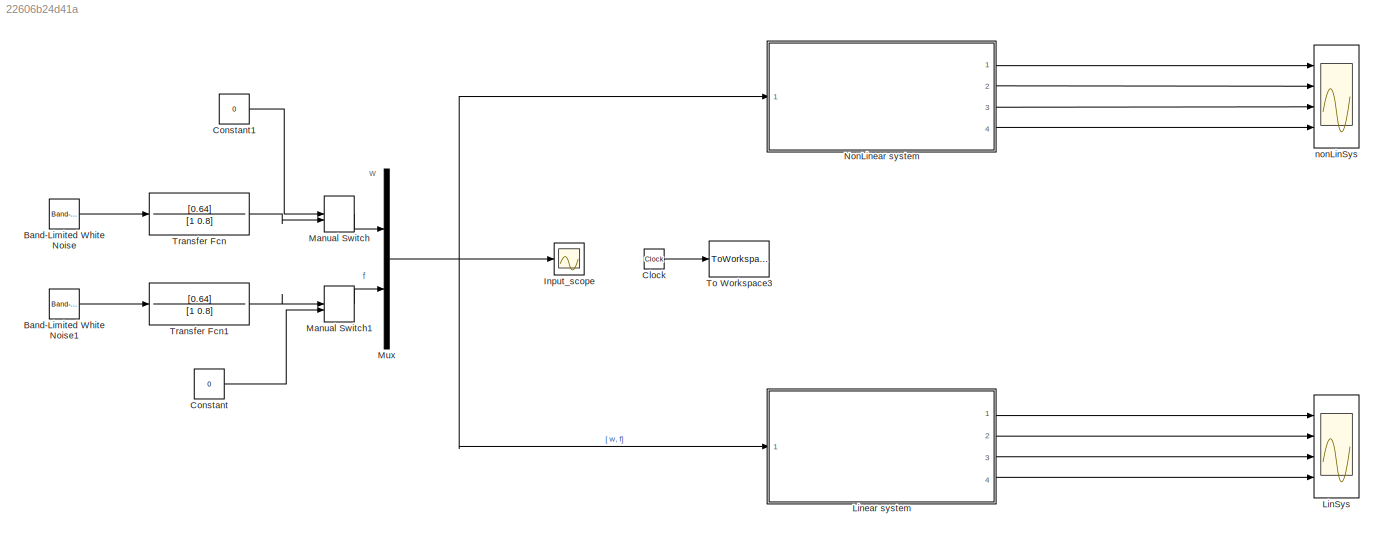
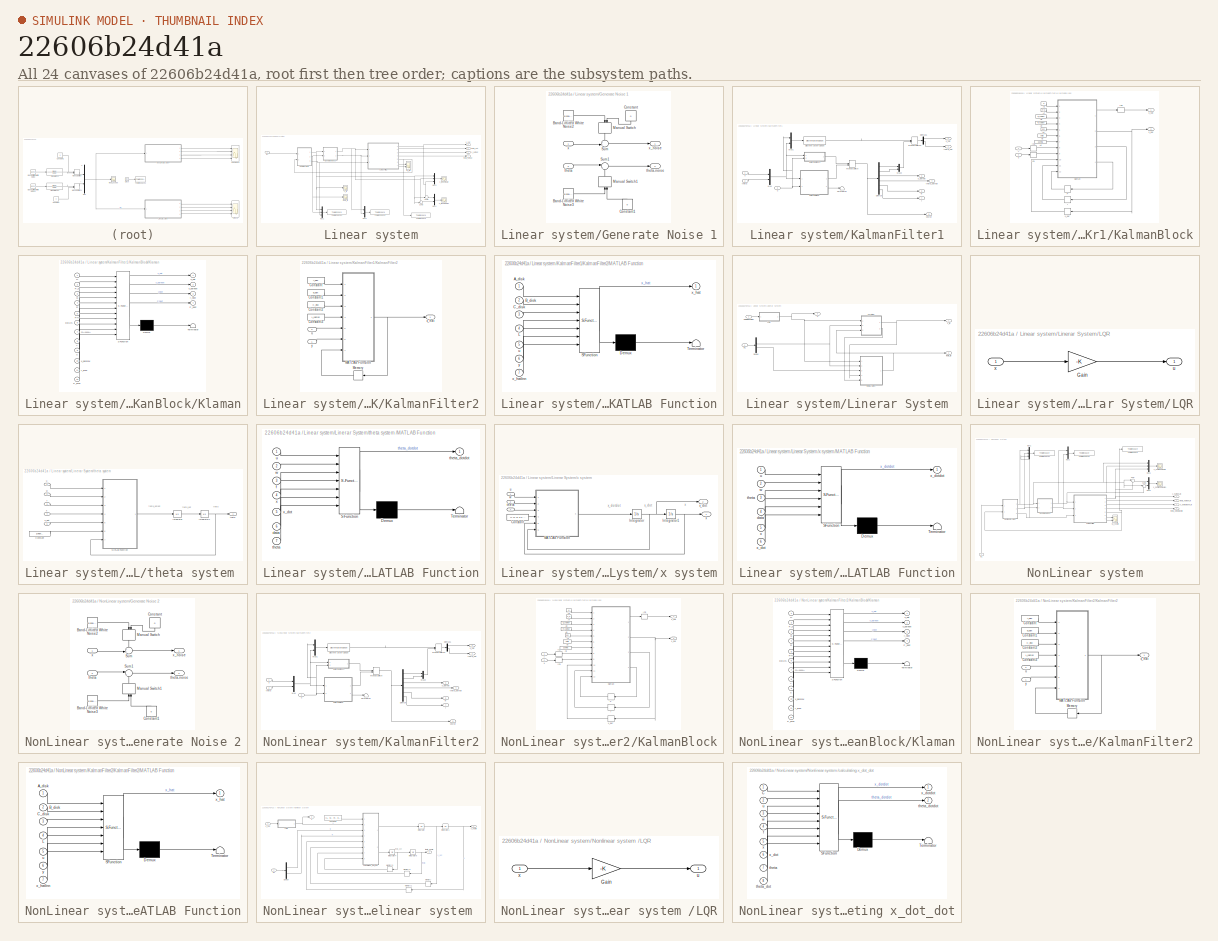
[diagram: thumbnail index - all 24 canvases of the model, root first then tree order]
MODEL slx_22606b24d41a
KIND model
CONFIG AbsTol = auto
CONFIG FixedStep = h
CONFIG MaxStep = auto
CONFIG MinStep = auto
CONFIG RelTol = 1e-3
CONFIG SampleTimeConstraint = Unconstrained
CONFIG Solver = ode3
CONFIG SolverMode = Auto
CONFIG SolverName = ode3
CONFIG StartTime = 0.0
CONFIG StopTime = T_max
BLOCK [Reference] Band-Limited White Noise  REF=simulink/Sources/Band-Limited
White Noise
  Cov = Q_kalman(1,1)
  Ports = [0, 1]
  SourceBlock = simulink/Sources/Band-Limited\nWhite Noise
  SourceType = Band-Limited White Noise.
  Ts = h
  VectorParams1D = on
  seed = [23343]
BLOCK [Reference] Band-Limited White Noise1  REF=simulink/Sources/Band-Limited
White Noise
  Cov = Q_kalman(2,2)
  Ports = [0, 1]
  SourceBlock = simulink/Sources/Band-Limited\nWhite Noise
  SourceType = Band-Limited White Noise.
  Ts = h
  VectorParams1D = on
  seed = [23344]
BLOCK [Clock] Clock
BLOCK [Constant] Constant
  Value = 0
BLOCK [Constant] Constant1
  Value = 0
BLOCK [Scope] Input_scope
  Floating = off
  LimitDataPoints = off
  NumInputPorts = 1
  Ports = [1]
  SaveName = ScopeData4
  ShowLegends = off
  YMax = 3
  YMin = -4
  ZoomMode = yonly
BLOCK [Scope] LinSys
  Floating = off
  LimitDataPoints = off
  NumInputPorts = 4
  Ports = [4]
  SaveName = ScopeData9
  ShowLegends = off
  YMax = 4~0.2~2~0.4
  YMin = -2~-0.2~-2~-0.4
BLOCK [SubSystem] Linear system
  Ports = [1, 4]
  RequestExecContextInheritance = off
BLOCK [SubSystem] Linear system/Generate Noise 1
  Ports = [2, 2]
  RequestExecContextInheritance = off
BLOCK [Reference] Linear system/Generate Noise 1/Band-Limited White Noise2  REF=simulink/Sources/Band-Limited
White Noise
  Cov = R_kalman(1,1)
  Ports = [0, 1]
  SourceBlock = simulink/Sources/Band-Limited\nWhite Noise
  SourceType = Band-Limited White Noise.
  Ts = h
  VectorParams1D = on
  seed = [23342]
BLOCK [Reference] Linear system/Generate Noise 1/Band-Limited White Noise3  REF=simulink/Sources/Band-Limited
White Noise
  Cov = R_kalman(2,2)
  Ports = [0, 1]
  SourceBlock = simulink/Sources/Band-Limited\nWhite Noise
  SourceType = Band-Limited White Noise.
  Ts = h
  VectorParams1D = on
  seed = [23341]
BLOCK [Constant] Linear system/Generate Noise 1/Constant
  Value = 0
BLOCK [Constant] Linear system/Generate Noise 1/Constant1
  Value = 0
BLOCK [ManualSwitch] Linear system/Generate Noise 1/Manual Switch
BLOCK [ManualSwitch] Linear system/Generate Noise 1/Manual Switch1
BLOCK [Sum] Linear system/Generate Noise 1/Sum
  IconShape = round
  InputSameDT = off
  Inputs = ++|
  OutDataTypeStr = Inherit: Inherit via internal rule
  Ports = [2, 1]
  SaturateOnIntegerOverflow = off
BLOCK [Sum] Linear system/Generate Noise 1/Sum1
  IconShape = round
  InputSameDT = off
  Inputs = |++
  OutDataTypeStr = Inherit: Inherit via internal rule
  Ports = [2, 1]
  SaturateOnIntegerOverflow = off
BLOCK [Inport] Linear system/Generate Noise 1/theta
  IconDisplay = Port number
  Port = 2
BLOCK [Outport] Linear system/Generate Noise 1/theta-noise
  IconDisplay = Port number
  Port = 2
BLOCK [Inport] Linear system/Generate Noise 1/x
  IconDisplay = Port number
BLOCK [Outport] Linear system/Generate Noise 1/x_noise
  IconDisplay = Port number
BLOCK [Inport] Linear system/In1
  IconDisplay = Port number
BLOCK [SubSystem] Linear system/KalmanFilter1
  Ports = [3, 7]
  RequestExecContextInheritance = off
BLOCK [Demux] Linear system/KalmanFilter1/Demux
  DisplayOption = bar
  Outputs = 6
  Ports = [1, 6]
BLOCK [Demux] Linear system/KalmanFilter1/Demux1
  DisplayOption = bar
  Outputs = 2
  Ports = [1, 2]
BLOCK [DiscreteStateSpace] Linear system/KalmanFilter1/Discrete State-Space
  A = A_ss
  B = B_ss
  C = C_ss
  D = D_ss
BLOCK [SubSystem] Linear system/KalmanFilter1/KalmanBlock
  Ports = [2, 2]
  RequestExecContextInheritance = off
BLOCK [Constant] Linear system/KalmanFilter1/KalmanBlock/A2
  Value = H
BLOCK [Constant] Linear system/KalmanFilter1/KalmanBlock/A4
  Value = phi
BLOCK [Constant] Linear system/KalmanFilter1/KalmanBlock/A5
  Value = delta
BLOCK [Constant] Linear system/KalmanFilter1/KalmanBlock/A6
  Value = gamma
BLOCK [Constant] Linear system/KalmanFilter1/KalmanBlock/A7
  Value = P_0
BLOCK [Constant] Linear system/KalmanFilter1/KalmanBlock/A8
  Value = Q_kalman
BLOCK [Constant] Linear system/KalmanFilter1/KalmanBlock/A9
  Value = R_kalman
BLOCK [InitialCondition] Linear system/KalmanFilter1/KalmanBlock/IC3
  Value = y_0
BLOCK [InitialCondition] Linear system/KalmanFilter1/KalmanBlock/IC4
  Value = 0
BLOCK [InitialCondition] Linear system/KalmanFilter1/KalmanBlock/IC5
  Value = X_0
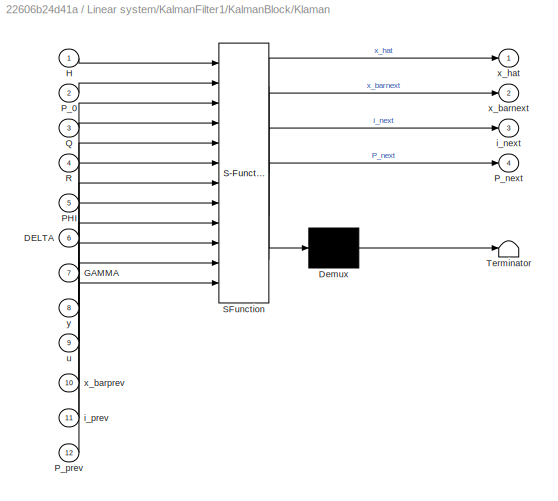
BLOCK [SubSystem] Linear system/KalmanFilter1/KalmanBlock/Klaman
  ErrorFcn = Stateflow.Translate.translate
  PermitHierarchicalResolution = ExplicitOnly
  Ports = [12, 4]
  RequestExecContextInheritance = off
  SFBlockType = MATLAB Function
  TreatAsAtomicUnit = on
BLOCK [Demux] Linear system/KalmanFilter1/KalmanBlock/Klaman/ Demux 
  Outputs = 1
  Ports = [1, 1]
BLOCK [S-Function] Linear system/KalmanFilter1/KalmanBlock/Klaman/ SFunction 
  EnableBusSupport = on
  FunctionName = sf_sfun
  PortCounts = [12 5]
  Ports = [12, 5]
  Tag = Stateflow S-Function Model_kalmanTest4 5
BLOCK [Terminator] Linear system/KalmanFilter1/KalmanBlock/Klaman/ Terminator 
BLOCK [Inport] Linear system/KalmanFilter1/KalmanBlock/Klaman/DELTA
  IconDisplay = Port number
  Port = 6
BLOCK [Inport] Linear system/KalmanFilter1/KalmanBlock/Klaman/GAMMA
  IconDisplay = Port number
  Port = 7
BLOCK [Inport] Linear system/KalmanFilter1/KalmanBlock/Klaman/H
  IconDisplay = Port number
BLOCK [Inport] Linear system/KalmanFilter1/KalmanBlock/Klaman/PHI
  IconDisplay = Port number
  Port = 5
BLOCK [Inport] Linear system/KalmanFilter1/KalmanBlock/Klaman/P_0
  IconDisplay = Port number
  Port = 2
BLOCK [Outport] Linear system/KalmanFilter1/KalmanBlock/Klaman/P_next
  IconDisplay = Port number
  Port = 4
BLOCK [Inport] Linear system/KalmanFilter1/KalmanBlock/Klaman/P_prev
  IconDisplay = Port number
  Port = 12
BLOCK [Inport] Linear system/KalmanFilter1/KalmanBlock/Klaman/Q
  IconDisplay = Port number
  Port = 3
BLOCK [Inport] Linear system/KalmanFilter1/KalmanBlock/Klaman/R
  IconDisplay = Port number
  Port = 4
BLOCK [Outport] Linear system/KalmanFilter1/KalmanBlock/Klaman/i_next
  IconDisplay = Port number
  Port = 3
BLOCK [Inport] Linear system/KalmanFilter1/KalmanBlock/Klaman/i_prev
  IconDisplay = Port number
  Port = 11
BLOCK [Inport] Linear system/KalmanFilter1/KalmanBlock/Klaman/u
  IconDisplay = Port number
  Port = 9
BLOCK [Outport] Linear system/KalmanFilter1/KalmanBlock/Klaman/x_barnext
  IconDisplay = Port number
  Port = 2
BLOCK [Inport] Linear system/KalmanFilter1/KalmanBlock/Klaman/x_barprev
  IconDisplay = Port number
  Port = 10
BLOCK [Outport] Linear system/KalmanFilter1/KalmanBlock/Klaman/x_hat
  IconDisplay = Port number
BLOCK [Inport] Linear system/KalmanFilter1/KalmanBlock/Klaman/y
  IconDisplay = Port number
  Port = 8
BLOCK [Memory] Linear system/KalmanFilter1/KalmanBlock/P
  X0 = P_0
BLOCK [Memory] Linear system/KalmanFilter1/KalmanBlock/i 
BLOCK [Inport] Linear system/KalmanFilter1/KalmanBlock/u 
  IconDisplay = Port number
  Port = 2
BLOCK [Outport] Linear system/KalmanFilter1/KalmanBlock/x_bar
  IconDisplay = Port number
  Port = 2
BLOCK [Memory] Linear system/KalmanFilter1/KalmanBlock/x_bar'
  X0 = X_0
BLOCK [Outport] Linear system/KalmanFilter1/KalmanBlock/x_hat
  IconDisplay = Port number
BLOCK [Inport] Linear system/KalmanFilter1/KalmanBlock/y 
  IconDisplay = Port number
BLOCK [SubSystem] Linear system/KalmanFilter1/KalmanFilter2
  Ports = [2, 1]
  RequestExecContextInheritance = off
BLOCK [Constant] Linear system/KalmanFilter1/KalmanFilter2/Constant
  Value = A_disk
BLOCK [Constant] Linear system/KalmanFilter1/KalmanFilter2/Constant1
  Value = B_disk
BLOCK [Constant] Linear system/KalmanFilter1/KalmanFilter2/Constant2
  Value = C_disk
BLOCK [Constant] Linear system/KalmanFilter1/KalmanFilter2/Constant3
  Value = L_kalman
BLOCK [SubSystem] Linear system/KalmanFilter1/KalmanFilter2/MATLAB Function
  ErrorFcn = Stateflow.Translate.translate
  PermitHierarchicalResolution = ExplicitOnly
  Ports = [7, 1]
  RequestExecContextInheritance = off
  SFBlockType = MATLAB Function
  TreatAsAtomicUnit = on
BLOCK [Demux] Linear system/KalmanFilter1/KalmanFilter2/MATLAB Function/ Demux 
  Outputs = 1
  Ports = [1, 1]
BLOCK [S-Function] Linear system/KalmanFilter1/KalmanFilter2/MATLAB Function/ SFunction 
  EnableBusSupport = on
  FunctionName = sf_sfun
  PortCounts = [7 2]
  Ports = [7, 2]
  Tag = Stateflow S-Function Model_kalmanTest4 7
BLOCK [Terminator] Linear system/KalmanFilter1/KalmanFilter2/MATLAB Function/ Terminator 
BLOCK [Inport] Linear system/KalmanFilter1/KalmanFilter2/MATLAB Function/A_disk
  IconDisplay = Port number
BLOCK [Inport] Linear system/KalmanFilter1/KalmanFilter2/MATLAB Function/B_disk
  IconDisplay = Port number
  Port = 2
BLOCK [Inport] Linear system/KalmanFilter1/KalmanFilter2/MATLAB Function/C_disk
  IconDisplay = Port number
  Port = 3
BLOCK [Inport] Linear system/KalmanFilter1/KalmanFilter2/MATLAB Function/L
  IconDisplay = Port number
  Port = 4
BLOCK [Inport] Linear system/KalmanFilter1/KalmanFilter2/MATLAB Function/u
  IconDisplay = Port number
  Port = 5
BLOCK [Outport] Linear system/KalmanFilter1/KalmanFilter2/MATLAB Function/x_hat
  IconDisplay = Port number
BLOCK [Inport] Linear system/KalmanFilter1/KalmanFilter2/MATLAB Function/x_hatInn
  IconDisplay = Port number
  Port = 7
BLOCK [Inport] Linear system/KalmanFilter1/KalmanFilter2/MATLAB Function/y
  IconDisplay = Port number
  Port = 6
BLOCK [Memory] Linear system/KalmanFilter1/KalmanFilter2/Memory
  X0 = X_0
BLOCK [Inport] Linear system/KalmanFilter1/KalmanFilter2/u
  IconDisplay = Port number
  Port = 2
BLOCK [Outport] Linear system/KalmanFilter1/KalmanFilter2/x_hat
  IconDisplay = Port number
BLOCK [Inport] Linear system/KalmanFilter1/KalmanFilter2/y
  IconDisplay = Port number
BLOCK [ManualSwitch] Linear system/KalmanFilter1/Manual Switch
  CurrentSetting = 0
BLOCK [ManualSwitch] Linear system/KalmanFilter1/Manual Switch1
  CurrentSetting = 0
BLOCK [Mux] Linear system/KalmanFilter1/Mux
  DisplayOption = bar
  Inputs = 2
  Ports = [2, 1]
BLOCK [Mux] Linear system/KalmanFilter1/Mux1
  DisplayOption = bar
  Inputs = 2
  Ports = [2, 1]
BLOCK [Mux] Linear system/KalmanFilter1/Mux2
  DisplayOption = bar
  Inputs = 2
  Ports = [2, 1]
BLOCK [Terminator] Linear system/KalmanFilter1/Terminator
BLOCK [Outport] Linear system/KalmanFilter1/f
  IconDisplay = Port number
  Port = 7
BLOCK [Inport] Linear system/KalmanFilter1/theta
  IconDisplay = Port number
  Port = 2
BLOCK [Outport] Linear system/KalmanFilter1/theta_dothat
  IconDisplay = Port number
  Port = 4
BLOCK [Outport] Linear system/KalmanFilter1/theta_hat
  IconDisplay = Port number
  Port = 2
BLOCK [Inport] Linear system/KalmanFilter1/u 
  IconDisplay = Port number
  Port = 3
BLOCK [Outport] Linear system/KalmanFilter1/vector
  IconDisplay = Port number
  Port = 5
BLOCK [Outport] Linear system/KalmanFilter1/w
  IconDisplay = Port number
  Port = 6
BLOCK [Inport] Linear system/KalmanFilter1/x
  IconDisplay = Port number
BLOCK [Outport] Linear system/KalmanFilter1/x_dothat
  IconDisplay = Port number
  Port = 3
BLOCK [Outport] Linear system/KalmanFilter1/x_hat
  IconDisplay = Port number
BLOCK [SubSystem] Linear system/Linerar System
  Ports = [2, 3]
  RequestExecContextInheritance = off
BLOCK [Demux] Linear system/Linerar System/Demux
  DisplayOption = bar
  Outputs = 2
  Ports = [1, 2]
BLOCK [Inport] Linear system/Linerar System/Estimated states
  IconDisplay = Port number
  Port = 2
BLOCK [Inport] Linear system/Linerar System/In1
  IconDisplay = Port number
BLOCK [SubSystem] Linear system/Linerar System/LQR
  Ports = [1, 1]
  RequestExecContextInheritance = off
BLOCK [Gain] Linear system/Linerar System/LQR/Gain
  Gain = -K
  Multiplication = Matrix(K*u)
  OutDataTypeStr = Inherit: Inherit via internal rule
  ParamDataTypeStr = Inherit: Inherit via internal rule
  SaturateOnIntegerOverflow = off
BLOCK [Outport] Linear system/Linerar System/LQR/u
  IconDisplay = Port number
BLOCK [Inport] Linear system/Linerar System/LQR/x
  IconDisplay = Port number
BLOCK [SubSystem] Linear system/Linerar System/theta system 
  Ports = [5, 1]
  RequestExecContextInheritance = off
BLOCK [Constant] Linear system/Linerar System/theta system /Constant
  SampleTime = 0.01
  Value = [L M m b k g]
  VectorParams1D = off
BLOCK [Integrator] Linear system/Linerar System/theta system /Integrator
  InitialCondition = theta_dot0
  Ports = [1, 1]
BLOCK [Integrator] Linear system/Linerar System/theta system /Integrator1
  InitialCondition = theta_0
  Ports = [1, 1]
BLOCK [SubSystem] Linear system/Linerar System/theta system /MATLAB Function
  ErrorFcn = Stateflow.Translate.translate
  PermitHierarchicalResolution = ExplicitOnly
  Ports = [7, 1]
  RequestExecContextInheritance = off
  SFBlockType = MATLAB Function
  TreatAsAtomicUnit = on
BLOCK [Demux] Linear system/Linerar System/theta system /MATLAB Function/ Demux 
  Outputs = 1
  Ports = [1, 1]
BLOCK [S-Function] Linear system/Linerar System/theta system /MATLAB Function/ SFunction 
  EnableBusSupport = on
  FunctionName = sf_sfun
  PortCounts = [7 2]
  Ports = [7, 2]
  Tag = Stateflow S-Function Model_kalmanTest4 3
BLOCK [Terminator] Linear system/Linerar System/theta system /MATLAB Function/ Terminator 
BLOCK [Inport] Linear system/Linerar System/theta system /MATLAB Function/data
  IconDisplay = Port number
  Port = 6
BLOCK [Inport] Linear system/Linerar System/theta system /MATLAB Function/f
  IconDisplay = Port number
  Port = 3
BLOCK [Inport] Linear system/Linerar System/theta system /MATLAB Function/theta
  IconDisplay = Port number
  Port = 7
BLOCK [Outport] Linear system/Linerar System/theta system /MATLAB Function/theta_dotdot
  IconDisplay = Port number
BLOCK [Inport] Linear system/Linerar System/theta system /MATLAB Function/u
  IconDisplay = Port number
BLOCK [Inport] Linear system/Linerar System/theta system /MATLAB Function/w
  IconDisplay = Port number
  Port = 2
BLOCK [Inport] Linear system/Linerar System/theta system /MATLAB Function/x
  IconDisplay = Port number
  Port = 4
BLOCK [Inport] Linear system/Linerar System/theta system /MATLAB Function/x_dot
  IconDisplay = Port number
  Port = 5
BLOCK [Inport] Linear system/Linerar System/theta system /f
  IconDisplay = Port number
  Port = 3
BLOCK [Outport] Linear system/Linerar System/theta system /theta
  IconDisplay = Port number
BLOCK [Inport] Linear system/Linerar System/theta system /u 
  IconDisplay = Port number
BLOCK [Inport] Linear system/Linerar System/theta system /w
  IconDisplay = Port number
  Port = 2
BLOCK [Inport] Linear system/Linerar System/theta system /x
  IconDisplay = Port number
  Port = 4
BLOCK [Inport] Linear system/Linerar System/theta system /x_dot
  IconDisplay = Port number
  Port = 5
BLOCK [Outport] Linear system/Linerar System/theta_lin
  IconDisplay = Port number
  Port = 2
BLOCK [Outport] Linear system/Linerar System/u
  IconDisplay = Port number
  Port = 3
BLOCK [SubSystem] Linear system/Linerar System/x system
  Ports = [3, 2]
  RequestExecContextInheritance = off
BLOCK [Constant] Linear system/Linerar System/x system/Constant
  SampleTime = 0.01
  Value = [L M m b k g]
  VectorParams1D = off
BLOCK [Integrator] Linear system/Linerar System/x system/Integrator
  InitialCondition = x_dot0
  Ports = [1, 1]
BLOCK [Integrator] Linear system/Linerar System/x system/Integrator1
  InitialCondition = x_0
  Ports = [1, 1]
BLOCK [SubSystem] Linear system/Linerar System/x system/MATLAB Function
  ErrorFcn = Stateflow.Translate.translate
  PermitHierarchicalResolution = ExplicitOnly
  Ports = [6, 1]
  RequestExecContextInheritance = off
  SFBlockType = MATLAB Function
  TreatAsAtomicUnit = on
BLOCK [Demux] Linear system/Linerar System/x system/MATLAB Function/ Demux 
  Outputs = 1
  Ports = [1, 1]
BLOCK [S-Function] Linear system/Linerar System/x system/MATLAB Function/ SFunction 
  EnableBusSupport = on
  FunctionName = sf_sfun
  PortCounts = [6 2]
  Ports = [6, 2]
  Tag = Stateflow S-Function Model_kalmanTest4 1
BLOCK [Terminator] Linear system/Linerar System/x system/MATLAB Function/ Terminator 
BLOCK [Inport] Linear system/Linerar System/x system/MATLAB Function/data
  IconDisplay = Port number
  Port = 4
BLOCK [Inport] Linear system/Linerar System/x system/MATLAB Function/theta
  IconDisplay = Port number
  Port = 3
BLOCK [Inport] Linear system/Linerar System/x system/MATLAB Function/u
  IconDisplay = Port number
BLOCK [Inport] Linear system/Linerar System/x system/MATLAB Function/w
  IconDisplay = Port number
  Port = 2
BLOCK [Inport] Linear system/Linerar System/x system/MATLAB Function/x
  IconDisplay = Port number
  Port = 5
BLOCK [Inport] Linear system/Linerar System/x system/MATLAB Function/x_dot
  IconDisplay = Port number
  Port = 6
BLOCK [Outport] Linear system/Linerar System/x system/MATLAB Function/x_dotdot
  IconDisplay = Port number
BLOCK [Inport] Linear system/Linerar System/x system/theta
  IconDisplay = Port number
  Port = 3
BLOCK [Inport] Linear system/Linerar System/x system/u 
  IconDisplay = Port number
BLOCK [Inport] Linear system/Linerar System/x system/w
  IconDisplay = Port number
  Port = 2
BLOCK [Outport] Linear system/Linerar System/x system/x
  IconDisplay = Port number
BLOCK [Outport] Linear system/Linerar System/x system/x_dot
  IconDisplay = Port number
  Port = 2
BLOCK [Outport] Linear system/Linerar System/x_lin
  IconDisplay = Port number
BLOCK [Mux] Linear system/Mux1
  DisplayOption = bar
  Inputs = 3
  Ports = [3, 1]
BLOCK [Mux] Linear system/Mux2
  DisplayOption = bar
  Inputs = 2
  Ports = [2, 1]
BLOCK [Mux] Linear system/Mux3
  DisplayOption = bar
  Inputs = 3
  Ports = [3, 1]
BLOCK [Mux] Linear system/Mux4
  DisplayOption = bar
  Inputs = 2
  Ports = [2, 1]
BLOCK [Sum] Linear system/Sum2
  IconShape = round
  InputSameDT = off
  Inputs = -+|
  OutDataTypeStr = Inherit: Inherit via internal rule
  Ports = [2, 1]
  SaturateOnIntegerOverflow = off
BLOCK [Sum] Linear system/Sum3
  IconShape = round
  InputSameDT = off
  Inputs = -+|
  OutDataTypeStr = Inherit: Inherit via internal rule
  Ports = [2, 1]
  SaturateOnIntegerOverflow = off
BLOCK [ToWorkspace] Linear system/To Workspace
  FixptAsFi = on
  MaxDataPoints = inf
  Ports = [1]
  SampleTime = -1
  Save2DSignal = 3-D array (concatenate along third dimension)
  VariableName = KalmanFilterOutLin
BLOCK [ToWorkspace] Linear system/To Workspace1
  FixptAsFi = on
  MaxDataPoints = inf
  Ports = [1]
  SampleTime = -1
  Save2DSignal = 3-D array (concatenate along third dimension)
  VariableName = SimOutLin
BLOCK [ToWorkspace] Linear system/To Workspace2
  FixptAsFi = on
  MaxDataPoints = inf
  Ports = [1]
  SampleTime = -1
  Save2DSignal = 3-D array (concatenate along third dimension)
  VariableName = NoiseSigLin
BLOCK [Outport] Linear system/theta_dothat
  IconDisplay = Port number
  Port = 4
BLOCK [Outport] Linear system/theta_hat
  IconDisplay = Port number
  Port = 2
BLOCK [Scope] Linear system/theta_lin
  DataFormat = StructureWithTime
  Floating = off
  LimitDataPoints = off
  NumInputPorts = 1
  Ports = [1]
  SaveName = ScopeData2
  ShowLegends = off
  YMax = 25353039785693015000000000000000000000000000000000000000000000000000000000000000000000000000000000000000000000000000000000000000000000000000000000000000000000000000000000000000000000000000000000000000000000000000000000000000000000000000000000000000000000000000000000000000000000000000000000000000000000000.00000
  YMin = -228177358071237180000000000000000000000000000000000000000000000000000000000000000000000000000000000000000000000000000000000000000000000000000000000000000000000000000000000000000000000000000000000000000000000000000000000000000000000000000000000000000000000000000000000000000000000000000000000000000000000000.00000
BLOCK [Scope] Linear system/w_f_lin
  DataFormat = StructureWithTime
  Floating = off
  LegendLocations = 0.87418     0.90781    0.097674    0.028273\n0.87418     0.44321    0.097674    0.028273
  LimitDataPoints = off
  NumInputPorts = 2
  Ports = [2]
  SaveName = ScopeData10
  ShowLegends = on
  YMax = 4~0.03
  YMin = -4~-0.03
  ZoomMode = yonly
BLOCK [Outport] Linear system/x_dothat
  IconDisplay = Port number
  Port = 3
BLOCK [Outport] Linear system/x_hat
  IconDisplay = Port number
BLOCK [Scope] Linear system/x_lin
  DataFormat = StructureWithTime
  Floating = off
  LimitDataPoints = off
  NumInputPorts = 1
  Ports = [1]
  SaveName = ScopeData1
  ShowLegends = off
  YMax = 0.5
  YMin = -0.5
  ZoomMode = yonly
BLOCK [Scope] Linear system/x_linCompare
  DataFormat = StructureWithTime
  Floating = off
  LegendLocations = 0.86111     0.86503     0.11083    0.071054
  LimitDataPoints = off
  NumInputPorts = 1
  Ports = [1]
  SaveName = ScopeData6
  ShowLegends = on
  TimeRange = 100
  YMax = 2.5
  YMin = -2
  ZoomMode = yonly
BLOCK [Scope] Linear system/x_linCompare 2
  DataFormat = StructureWithTime
  Floating = off
  LegendLocations = 0.90964     0.88642    0.062214    0.049664
  LimitDataPoints = off
  NumInputPorts = 1
  Ports = [1]
  SaveName = ScopeData7
  ShowLegends = on
  YMax = 0.15
  YMin = -0.15
  ZoomMode = xonly
BLOCK [ManualSwitch] Manual Switch
  CurrentSetting = 0
BLOCK [ManualSwitch] Manual Switch1
BLOCK [Mux] Mux
  DisplayOption = bar
  Inputs = 2
  Ports = [2, 1]
BLOCK [SubSystem] NonLinear system
  Ports = [1, 4]
  RequestExecContextInheritance = off
BLOCK [SubSystem] NonLinear system/Generate Noise 2
  Ports = [2, 2]
  RequestExecContextInheritance = off
BLOCK [Reference] NonLinear system/Generate Noise 2/Band-Limited White Noise2  REF=simulink/Sources/Band-Limited
White Noise
  Cov = R_kalman(1,1)
  Ports = [0, 1]
  SourceBlock = simulink/Sources/Band-Limited\nWhite Noise
  SourceType = Band-Limited White Noise.
  Ts = h
  VectorParams1D = on
  seed = [23342]
BLOCK [Reference] NonLinear system/Generate Noise 2/Band-Limited White Noise3  REF=simulink/Sources/Band-Limited
White Noise
  Cov = R_kalman(2,2)
  Ports = [0, 1]
  SourceBlock = simulink/Sources/Band-Limited\nWhite Noise
  SourceType = Band-Limited White Noise.
  Ts = h
  VectorParams1D = on
  seed = [23341]
BLOCK [Constant] NonLinear system/Generate Noise 2/Constant
  Value = 0
BLOCK [Constant] NonLinear system/Generate Noise 2/Constant1
  Value = 0
BLOCK [ManualSwitch] NonLinear system/Generate Noise 2/Manual Switch
BLOCK [ManualSwitch] NonLinear system/Generate Noise 2/Manual Switch1
BLOCK [Sum] NonLinear system/Generate Noise 2/Sum
  IconShape = round
  InputSameDT = off
  Inputs = ++|
  OutDataTypeStr = Inherit: Inherit via internal rule
  Ports = [2, 1]
  SaturateOnIntegerOverflow = off
BLOCK [Sum] NonLinear system/Generate Noise 2/Sum1
  IconShape = round
  InputSameDT = off
  Inputs = |++
  OutDataTypeStr = Inherit: Inherit via internal rule
  Ports = [2, 1]
  SaturateOnIntegerOverflow = off
BLOCK [Inport] NonLinear system/Generate Noise 2/theta
  IconDisplay = Port number
  Port = 2
BLOCK [Outport] NonLinear system/Generate Noise 2/theta-noise
  IconDisplay = Port number
  Port = 2
BLOCK [Inport] NonLinear system/Generate Noise 2/x
  IconDisplay = Port number
BLOCK [Outport] NonLinear system/Generate Noise 2/x_noise
  IconDisplay = Port number
BLOCK [Inport] NonLinear system/In1
  IconDisplay = Port number
BLOCK [SubSystem] NonLinear system/KalmanFilter2
  Ports = [3, 7]
  RequestExecContextInheritance = off
BLOCK [Demux] NonLinear system/KalmanFilter2/Demux
  DisplayOption = bar
  Outputs = 6
  Ports = [1, 6]
BLOCK [Demux] NonLinear system/KalmanFilter2/Demux1
  DisplayOption = bar
  Outputs = 2
  Ports = [1, 2]
BLOCK [DiscreteStateSpace] NonLinear system/KalmanFilter2/Discrete State-Space
  A = A_ss
  B = B_ss
  C = C_ss
  D = D_ss
BLOCK [SubSystem] NonLinear system/KalmanFilter2/KalmanBlock
  Ports = [2, 2]
  RequestExecContextInheritance = off
BLOCK [Constant] NonLinear system/KalmanFilter2/KalmanBlock/A2
  Value = H
BLOCK [Constant] NonLinear system/KalmanFilter2/KalmanBlock/A4
  Value = phi
BLOCK [Constant] NonLinear system/KalmanFilter2/KalmanBlock/A5
  Value = delta
BLOCK [Constant] NonLinear system/KalmanFilter2/KalmanBlock/A6
  Value = gamma
BLOCK [Constant] NonLinear system/KalmanFilter2/KalmanBlock/A7
  Value = P_0
BLOCK [Constant] NonLinear system/KalmanFilter2/KalmanBlock/A8
  Value = Q_kalman
BLOCK [Constant] NonLinear system/KalmanFilter2/KalmanBlock/A9
  Value = R_kalman
BLOCK [InitialCondition] NonLinear system/KalmanFilter2/KalmanBlock/IC3
  Value = y_0
BLOCK [InitialCondition] NonLinear system/KalmanFilter2/KalmanBlock/IC4
  Value = 0
BLOCK [InitialCondition] NonLinear system/KalmanFilter2/KalmanBlock/IC5
  Value = X_0
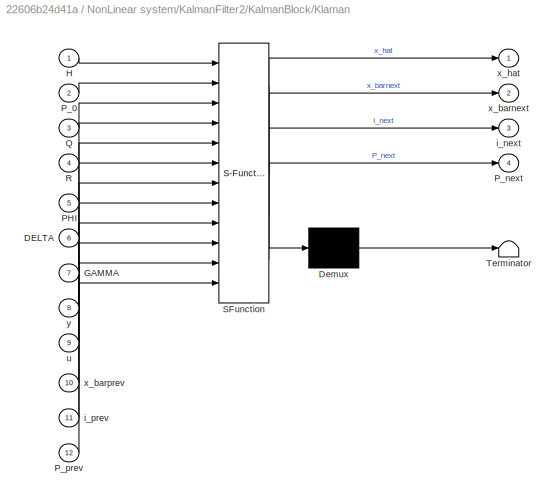
BLOCK [SubSystem] NonLinear system/KalmanFilter2/KalmanBlock/Klaman
  ErrorFcn = Stateflow.Translate.translate
  PermitHierarchicalResolution = ExplicitOnly
  Ports = [12, 4]
  RequestExecContextInheritance = off
  SFBlockType = MATLAB Function
  TreatAsAtomicUnit = on
BLOCK [Demux] NonLinear system/KalmanFilter2/KalmanBlock/Klaman/ Demux 
  Outputs = 1
  Ports = [1, 1]
BLOCK [S-Function] NonLinear system/KalmanFilter2/KalmanBlock/Klaman/ SFunction 
  EnableBusSupport = on
  FunctionName = sf_sfun
  PortCounts = [12 5]
  Ports = [12, 5]
  Tag = Stateflow S-Function Model_kalmanTest4 2
BLOCK [Terminator] NonLinear system/KalmanFilter2/KalmanBlock/Klaman/ Terminator 
BLOCK [Inport] NonLinear system/KalmanFilter2/KalmanBlock/Klaman/DELTA
  IconDisplay = Port number
  Port = 6
BLOCK [Inport] NonLinear system/KalmanFilter2/KalmanBlock/Klaman/GAMMA
  IconDisplay = Port number
  Port = 7
BLOCK [Inport] NonLinear system/KalmanFilter2/KalmanBlock/Klaman/H
  IconDisplay = Port number
BLOCK [Inport] NonLinear system/KalmanFilter2/KalmanBlock/Klaman/PHI
  IconDisplay = Port number
  Port = 5
BLOCK [Inport] NonLinear system/KalmanFilter2/KalmanBlock/Klaman/P_0
  IconDisplay = Port number
  Port = 2
BLOCK [Outport] NonLinear system/KalmanFilter2/KalmanBlock/Klaman/P_next
  IconDisplay = Port number
  Port = 4
BLOCK [Inport] NonLinear system/KalmanFilter2/KalmanBlock/Klaman/P_prev
  IconDisplay = Port number
  Port = 12
BLOCK [Inport] NonLinear system/KalmanFilter2/KalmanBlock/Klaman/Q
  IconDisplay = Port number
  Port = 3
BLOCK [Inport] NonLinear system/KalmanFilter2/KalmanBlock/Klaman/R
  IconDisplay = Port number
  Port = 4
BLOCK [Outport] NonLinear system/KalmanFilter2/KalmanBlock/Klaman/i_next
  IconDisplay = Port number
  Port = 3
BLOCK [Inport] NonLinear system/KalmanFilter2/KalmanBlock/Klaman/i_prev
  IconDisplay = Port number
  Port = 11
BLOCK [Inport] NonLinear system/KalmanFilter2/KalmanBlock/Klaman/u
  IconDisplay = Port number
  Port = 9
BLOCK [Outport] NonLinear system/KalmanFilter2/KalmanBlock/Klaman/x_barnext
  IconDisplay = Port number
  Port = 2
BLOCK [Inport] NonLinear system/KalmanFilter2/KalmanBlock/Klaman/x_barprev
  IconDisplay = Port number
  Port = 10
BLOCK [Outport] NonLinear system/KalmanFilter2/KalmanBlock/Klaman/x_hat
  IconDisplay = Port number
BLOCK [Inport] NonLinear system/KalmanFilter2/KalmanBlock/Klaman/y
  IconDisplay = Port number
  Port = 8
BLOCK [Memory] NonLinear system/KalmanFilter2/KalmanBlock/P
  X0 = P_0
BLOCK [Memory] NonLinear system/KalmanFilter2/KalmanBlock/i 
BLOCK [Inport] NonLinear system/KalmanFilter2/KalmanBlock/u 
  IconDisplay = Port number
  Port = 2
BLOCK [Outport] NonLinear system/KalmanFilter2/KalmanBlock/x_bar
  IconDisplay = Port number
  Port = 2
BLOCK [Memory] NonLinear system/KalmanFilter2/KalmanBlock/x_bar'
  X0 = X_0
BLOCK [Outport] NonLinear system/KalmanFilter2/KalmanBlock/x_hat
  IconDisplay = Port number
BLOCK [Inport] NonLinear system/KalmanFilter2/KalmanBlock/y 
  IconDisplay = Port number
BLOCK [SubSystem] NonLinear system/KalmanFilter2/KalmanFilter2
  Ports = [2, 1]
  RequestExecContextInheritance = off
BLOCK [Constant] NonLinear system/KalmanFilter2/KalmanFilter2/Constant
  Value = A_disk
BLOCK [Constant] NonLinear system/KalmanFilter2/KalmanFilter2/Constant1
  Value = B_disk
BLOCK [Constant] NonLinear system/KalmanFilter2/KalmanFilter2/Constant2
  Value = C_disk
BLOCK [Constant] NonLinear system/KalmanFilter2/KalmanFilter2/Constant3
  Value = L_kalman
BLOCK [SubSystem] NonLinear system/KalmanFilter2/KalmanFilter2/MATLAB Function
  ErrorFcn = Stateflow.Translate.translate
  PermitHierarchicalResolution = ExplicitOnly
  Ports = [7, 1]
  RequestExecContextInheritance = off
  SFBlockType = MATLAB Function
  TreatAsAtomicUnit = on
BLOCK [Demux] NonLinear system/KalmanFilter2/KalmanFilter2/MATLAB Function/ Demux 
  Outputs = 1
  Ports = [1, 1]
BLOCK [S-Function] NonLinear system/KalmanFilter2/KalmanFilter2/MATLAB Function/ SFunction 
  EnableBusSupport = on
  FunctionName = sf_sfun
  PortCounts = [7 2]
  Ports = [7, 2]
  Tag = Stateflow S-Function Model_kalmanTest4 6
BLOCK [Terminator] NonLinear system/KalmanFilter2/KalmanFilter2/MATLAB Function/ Terminator 
BLOCK [Inport] NonLinear system/KalmanFilter2/KalmanFilter2/MATLAB Function/A_disk
  IconDisplay = Port number
BLOCK [Inport] NonLinear system/KalmanFilter2/KalmanFilter2/MATLAB Function/B_disk
  IconDisplay = Port number
  Port = 2
BLOCK [Inport] NonLinear system/KalmanFilter2/KalmanFilter2/MATLAB Function/C_disk
  IconDisplay = Port number
  Port = 3
BLOCK [Inport] NonLinear system/KalmanFilter2/KalmanFilter2/MATLAB Function/L
  IconDisplay = Port number
  Port = 4
BLOCK [Inport] NonLinear system/KalmanFilter2/KalmanFilter2/MATLAB Function/u
  IconDisplay = Port number
  Port = 5
BLOCK [Outport] NonLinear system/KalmanFilter2/KalmanFilter2/MATLAB Function/x_hat
  IconDisplay = Port number
BLOCK [Inport] NonLinear system/KalmanFilter2/KalmanFilter2/MATLAB Function/x_hatInn
  IconDisplay = Port number
  Port = 7
BLOCK [Inport] NonLinear system/KalmanFilter2/KalmanFilter2/MATLAB Function/y
  IconDisplay = Port number
  Port = 6
BLOCK [Memory] NonLinear system/KalmanFilter2/KalmanFilter2/Memory
  X0 = X_0
BLOCK [Inport] NonLinear system/KalmanFilter2/KalmanFilter2/u
  IconDisplay = Port number
  Port = 2
BLOCK [Outport] NonLinear system/KalmanFilter2/KalmanFilter2/x_hat
  IconDisplay = Port number
BLOCK [Inport] NonLinear system/KalmanFilter2/KalmanFilter2/y
  IconDisplay = Port number
BLOCK [ManualSwitch] NonLinear system/KalmanFilter2/Manual Switch
  CurrentSetting = 0
BLOCK [ManualSwitch] NonLinear system/KalmanFilter2/Manual Switch1
  CurrentSetting = 0
BLOCK [Mux] NonLinear system/KalmanFilter2/Mux
  DisplayOption = bar
  Inputs = 2
  Ports = [2, 1]
BLOCK [Mux] NonLinear system/KalmanFilter2/Mux1
  DisplayOption = bar
  Inputs = 2
  Ports = [2, 1]
BLOCK [Mux] NonLinear system/KalmanFilter2/Mux2
  DisplayOption = bar
  Inputs = 2
  Ports = [2, 1]
BLOCK [Terminator] NonLinear system/KalmanFilter2/Terminator
BLOCK [Outport] NonLinear system/KalmanFilter2/f
  IconDisplay = Port number
  Port = 7
BLOCK [Inport] NonLinear system/KalmanFilter2/theta
  IconDisplay = Port number
  Port = 2
BLOCK [Outport] NonLinear system/KalmanFilter2/theta_dothat
  IconDisplay = Port number
  Port = 4
BLOCK [Outport] NonLinear system/KalmanFilter2/theta_hat
  IconDisplay = Port number
  Port = 2
BLOCK [Inport] NonLinear system/KalmanFilter2/u 
  IconDisplay = Port number
  Port = 3
BLOCK [Outport] NonLinear system/KalmanFilter2/vector
  IconDisplay = Port number
  Port = 5
BLOCK [Outport] NonLinear system/KalmanFilter2/w
  IconDisplay = Port number
  Port = 6
BLOCK [Inport] NonLinear system/KalmanFilter2/x
  IconDisplay = Port number
BLOCK [Outport] NonLinear system/KalmanFilter2/x_dothat
  IconDisplay = Port number
  Port = 3
BLOCK [Outport] NonLinear system/KalmanFilter2/x_hat
  IconDisplay = Port number
BLOCK [Mux] NonLinear system/Mux1
  DisplayOption = bar
  Inputs = 3
  Ports = [3, 1]
BLOCK [Mux] NonLinear system/Mux2
  DisplayOption = bar
  Inputs = 2
  Ports = [2, 1]
BLOCK [Mux] NonLinear system/Mux5
  DisplayOption = bar
  Inputs = 2
  Ports = [2, 1]
BLOCK [Mux] NonLinear system/Mux6
  DisplayOption = bar
  Inputs = 3
  Ports = [3, 1]
BLOCK [SubSystem] NonLinear system/Nonlinear system 
  Ports = [2, 3]
  RequestExecContextInheritance = off
BLOCK [Constant] NonLinear system/Nonlinear system /Constant1
  SampleTime = 0.01
  Value = [L, M, m, b, k, g]
BLOCK [Demux] NonLinear system/Nonlinear system /Demux
  DisplayOption = bar
  Outputs = 2
  Ports = [1, 2]
BLOCK [Inport] NonLinear system/Nonlinear system /In1
  IconDisplay = Port number
BLOCK [Integrator] NonLinear system/Nonlinear system /Integrator
  InitialCondition = x_dot0
  Ports = [1, 1]
BLOCK [Integrator] NonLinear system/Nonlinear system /Integrator1
  InitialCondition = x_0
  Ports = [1, 1]
BLOCK [Integrator] NonLinear system/Nonlinear system /Integrator4
  InitialCondition = theta_dot0
  Ports = [1, 1]
BLOCK [Integrator] NonLinear system/Nonlinear system /Integrator5
  InitialCondition = theta_0
  Ports = [1, 1]
BLOCK [SubSystem] NonLinear system/Nonlinear system /LQR
  Ports = [1, 1]
  RequestExecContextInheritance = off
BLOCK [Gain] NonLinear system/Nonlinear system /LQR/Gain
  Gain = -K
  Multiplication = Matrix(K*u)
  OutDataTypeStr = Inherit: Inherit via internal rule
  ParamDataTypeStr = Inherit: Inherit via internal rule
  SaturateOnIntegerOverflow = off
BLOCK [Outport] NonLinear system/Nonlinear system /LQR/u
  IconDisplay = Port number
BLOCK [Inport] NonLinear system/Nonlinear system /LQR/x
  IconDisplay = Port number
BLOCK [Memory] NonLinear system/Nonlinear system /Memory
  X0 = x_dot0
BLOCK [Memory] NonLinear system/Nonlinear system /Memory1
  X0 = x_0
BLOCK [Memory] NonLinear system/Nonlinear system /Memory2
  X0 = theta_0
BLOCK [Memory] NonLinear system/Nonlinear system /Memory3
  X0 = theta_dot0
BLOCK [SubSystem] NonLinear system/Nonlinear system /calculating x_dot_dot
  ErrorFcn = Stateflow.Translate.translate
  PermitHierarchicalResolution = ExplicitOnly
  Ports = [8, 2]
  RequestExecContextInheritance = off
  SFBlockType = MATLAB Function
  TreatAsAtomicUnit = on
BLOCK [Demux] NonLinear system/Nonlinear system /calculating x_dot_dot/ Demux 
  Outputs = 1
  Ports = [1, 1]
BLOCK [S-Function] NonLinear system/Nonlinear system /calculating x_dot_dot/ SFunction 
  EnableBusSupport = on
  FunctionName = sf_sfun
  PortCounts = [8 3]
  Ports = [8, 3]
  Tag = Stateflow S-Function Model_kalmanTest4 4
BLOCK [Terminator] NonLinear system/Nonlinear system /calculating x_dot_dot/ Terminator 
BLOCK [Inport] NonLinear system/Nonlinear system /calculating x_dot_dot/C
  IconDisplay = Port number
BLOCK [Inport] NonLinear system/Nonlinear system /calculating x_dot_dot/f
  IconDisplay = Port number
  Port = 4
BLOCK [Inport] NonLinear system/Nonlinear system /calculating x_dot_dot/theta
  IconDisplay = Port number
  Port = 7
BLOCK [Inport] NonLinear system/Nonlinear system /calculating x_dot_dot/theta_dot
  IconDisplay = Port number
  Port = 8
BLOCK [Outport] NonLinear system/Nonlinear system /calculating x_dot_dot/theta_dotdot
  IconDisplay = Port number
  Port = 2
BLOCK [Inport] NonLinear system/Nonlinear system /calculating x_dot_dot/u
  IconDisplay = Port number
  Port = 2
BLOCK [Inport] NonLinear system/Nonlinear system /calculating x_dot_dot/w
  IconDisplay = Port number
  Port = 3
BLOCK [Inport] NonLinear system/Nonlinear system /calculating x_dot_dot/x
  IconDisplay = Port number
  Port = 5
BLOCK [Inport] NonLinear system/Nonlinear system /calculating x_dot_dot/x_dot
  IconDisplay = Port number
  Port = 6
BLOCK [Outport] NonLinear system/Nonlinear system /calculating x_dot_dot/x_dotdot
  IconDisplay = Port number
BLOCK [Outport] NonLinear system/Nonlinear system /theta_nonlin
  IconDisplay = Port number
  Port = 2
BLOCK [Outport] NonLinear system/Nonlinear system /u
  IconDisplay = Port number
  Port = 3
BLOCK [Inport] NonLinear system/Nonlinear system /x_hat
  IconDisplay = Port number
  Port = 2
BLOCK [Outport] NonLinear system/Nonlinear system /x_nonlin
  IconDisplay = Port number
BLOCK [Sum] NonLinear system/Sum
  IconShape = round
  InputSameDT = off
  Inputs = |+-
  OutDataTypeStr = Inherit: Inherit via internal rule
  Ports = [2, 1]
  SaturateOnIntegerOverflow = off
BLOCK [Sum] NonLinear system/Sum1
  IconShape = round
  InputSameDT = off
  Inputs = |+-
  OutDataTypeStr = Inherit: Inherit via internal rule
  Ports = [2, 1]
  SaturateOnIntegerOverflow = off
BLOCK [ToWorkspace] NonLinear system/To Workspace
  FixptAsFi = on
  MaxDataPoints = inf
  Ports = [1]
  SampleTime = -1
  Save2DSignal = 3-D array (concatenate along third dimension)
  VariableName = KalmanFIlterOutNon
BLOCK [ToWorkspace] NonLinear system/To Workspace1
  FixptAsFi = on
  MaxDataPoints = inf
  Ports = [1]
  SampleTime = -1
  Save2DSignal = 3-D array (concatenate along third dimension)
  VariableName = SimOutNonLin
BLOCK [ToWorkspace] NonLinear system/To Workspace2
  FixptAsFi = on
  MaxDataPoints = inf
  Ports = [1]
  SampleTime = -1
  Save2DSignal = 3-D array (concatenate along third dimension)
  VariableName = NoiseSigNonLin
BLOCK [Outport] NonLinear system/theta_dothatNonlin
  IconDisplay = Port number
  Port = 4
BLOCK [Outport] NonLinear system/theta_hatNonLin
  IconDisplay = Port number
  Port = 2
BLOCK [Scope] NonLinear system/w_f_nonlin
  DataFormat = StructureWithTime
  Floating = off
  LimitDataPoints = off
  NumInputPorts = 2
  Ports = [2]
  SaveName = ScopeData12
  ShowLegends = on
  YMax = 2000~5
  YMin = -5000~-5
BLOCK [Outport] NonLinear system/x_dothatNonnLin
  IconDisplay = Port number
  Port = 3
BLOCK [Outport] NonLinear system/x_hatNonLin
  IconDisplay = Port number
BLOCK [Scope] NonLinear system/x_nonlinCompare 
  DataFormat = StructureWithTime
  Floating = off
  LimitDataPoints = off
  NumInputPorts = 1
  Ports = [1]
  SaveName = ScopeData5
  ShowLegends = on
  YMax = 2.5
  YMin = -1.5
BLOCK [Scope] NonLinear system/x_nonlinCompare 1
  DataFormat = StructureWithTime
  Floating = off
  LimitDataPoints = off
  NumInputPorts = 1
  Ports = [1]
  SaveName = ScopeData11
  ShowLegends = on
  TimeRange = 100
  YMax = 0.15
  YMin = -0.2
  ZoomMode = xonly
BLOCK [ToWorkspace] To Workspace3
  FixptAsFi = on
  MaxDataPoints = inf
  Ports = [1]
  SampleTime = -1
  Save2DSignal = 3-D array (concatenate along third dimension)
  VariableName = Time
BLOCK [TransferFcn] Transfer Fcn
  Denominator = [1 0.8]
  Numerator = [0.64]
BLOCK [TransferFcn] Transfer Fcn1
  Denominator = [1 0.8]
  Numerator = [0.64]
BLOCK [Scope] nonLinSys
  Floating = off
  LimitDataPoints = off
  NumInputPorts = 4
  Ports = [4]
  SaveName = ScopeData8
  ShowLegends = off
  YMax = 4~0.2~2~0.4
  YMin = -2~-0.2~-2~-0.4
  ZoomMode = yonly
ANNOTATION (root): f
ANNOTATION (root): w
ANNOTATION Linear system/Linerar System/theta system : theta
ANNOTATION Linear system/Linerar System/theta system : theta_dot
ANNOTATION Linear system/Linerar System/theta system : theta_dotdot
ANNOTATION Linear system/Linerar System/x system: x
ANNOTATION Linear system/Linerar System/x system: x_dot
ANNOTATION Linear system/Linerar System/x system: x_dotdot
ANNOTATION NonLinear system/Nonlinear system : theta_dot
LINE Band-Limited White Noise1:1 -> Transfer Fcn1:1
LINE Band-Limited White Noise:1 -> Transfer Fcn:1
LINE Clock:1 -> To Workspace3:1
LINE Constant1:1 -> Manual Switch:1
LINE Constant:1 -> Manual Switch1:2
LINE Linear system/Generate Noise 1/Band-Limited White Noise2:1 -> Linear system/Generate Noise 1/Manual Switch:1
LINE Linear system/Generate Noise 1/Band-Limited White Noise3:1 -> Linear system/Generate Noise 1/Manual Switch1:1
LINE Linear system/Generate Noise 1/Constant1:1 -> Linear system/Generate Noise 1/Manual Switch1:2
LINE Linear system/Generate Noise 1/Constant:1 -> Linear system/Generate Noise 1/Manual Switch:2
LINE Linear system/Generate Noise 1/Manual Switch1:1 -> Linear system/Generate Noise 1/Sum1:2
LINE Linear system/Generate Noise 1/Manual Switch:1 -> Linear system/Generate Noise 1/Sum:1
LINE Linear system/Generate Noise 1/Sum1:1 -> Linear system/Generate Noise 1/theta-noise:1
LINE Linear system/Generate Noise 1/Sum:1 -> Linear system/Generate Noise 1/x_noise:1
LINE Linear system/Generate Noise 1/theta:1 -> Linear system/Generate Noise 1/Sum1:1
LINE Linear system/Generate Noise 1/x:1 -> Linear system/Generate Noise 1/Sum:2
NET Linear system/Generate Noise 1:1 -> Linear system/KalmanFilter1:1, Linear system/Mux2:1, Linear system/Mux3:2, Linear system/Sum3:1
NET Linear system/Generate Noise 1:2 -> Linear system/KalmanFilter1:2, Linear system/Mux2:2
LINE Linear system/In1:1 -> Linear system/Linerar System:1
LINE Linear system/KalmanFilter1/Demux1:1 -> Linear system/KalmanFilter1/x_hat:1
LINE Linear system/KalmanFilter1/Demux1:2 -> Linear system/KalmanFilter1/theta_hat:1
LINE Linear system/KalmanFilter1/Demux:1 -> Linear system/KalmanFilter1/Mux2:1
LINE Linear system/KalmanFilter1/Demux:2 -> Linear system/KalmanFilter1/Mux2:2
LINE Linear system/KalmanFilter1/Demux:3 -> Linear system/KalmanFilter1/x_dothat:1
LINE Linear system/KalmanFilter1/Demux:4 -> Linear system/KalmanFilter1/theta_dothat:1
LINE Linear system/KalmanFilter1/Demux:5 -> Linear system/KalmanFilter1/w:1
LINE Linear system/KalmanFilter1/Demux:6 -> Linear system/KalmanFilter1/f:1
LINE Linear system/KalmanFilter1/Discrete State-Space:1 -> Linear system/KalmanFilter1/Manual Switch1:1
LINE Linear system/KalmanFilter1/KalmanBlock/A2:1 -> Linear system/KalmanFilter1/KalmanBlock/Klaman:1
LINE Linear system/KalmanFilter1/KalmanBlock/A4:1 -> Linear system/KalmanFilter1/KalmanBlock/Klaman:5
LINE Linear system/KalmanFilter1/KalmanBlock/A5:1 -> Linear system/KalmanFilter1/KalmanBlock/Klaman:6
LINE Linear system/KalmanFilter1/KalmanBlock/A6:1 -> Linear system/KalmanFilter1/KalmanBlock/Klaman:7
LINE Linear system/KalmanFilter1/KalmanBlock/A7:1 -> Linear system/KalmanFilter1/KalmanBlock/Klaman:2
LINE Linear system/KalmanFilter1/KalmanBlock/A8:1 -> Linear system/KalmanFilter1/KalmanBlock/Klaman:3
LINE Linear system/KalmanFilter1/KalmanBlock/A9:1 -> Linear system/KalmanFilter1/KalmanBlock/Klaman:4
LINE Linear system/KalmanFilter1/KalmanBlock/IC3:1 -> Linear system/KalmanFilter1/KalmanBlock/Klaman:8
LINE Linear system/KalmanFilter1/KalmanBlock/IC4:1 -> Linear system/KalmanFilter1/KalmanBlock/Klaman:9
LINE Linear system/KalmanFilter1/KalmanBlock/IC5:1 -> Linear system/KalmanFilter1/KalmanBlock/x_hat:1
LINE Linear system/KalmanFilter1/KalmanBlock/Klaman:1 -> Linear system/KalmanFilter1/KalmanBlock/IC5:1
NET Linear system/KalmanFilter1/KalmanBlock/Klaman:2 -> Linear system/KalmanFilter1/KalmanBlock/x_bar':1, Linear system/KalmanFilter1/KalmanBlock/x_bar:1
LINE Linear system/KalmanFilter1/KalmanBlock/Klaman:3 -> Linear system/KalmanFilter1/KalmanBlock/i :1
LINE Linear system/KalmanFilter1/KalmanBlock/Klaman:4 -> Linear system/KalmanFilter1/KalmanBlock/P:1
LINE Linear system/KalmanFilter1/KalmanBlock/P:1 -> Linear system/KalmanFilter1/KalmanBlock/Klaman:12
LINE Linear system/KalmanFilter1/KalmanBlock/i :1 -> Linear system/KalmanFilter1/KalmanBlock/Klaman:11
LINE Linear system/KalmanFilter1/KalmanBlock/u :1 -> Linear system/KalmanFilter1/KalmanBlock/IC4:1
LINE Linear system/KalmanFilter1/KalmanBlock/x_bar':1 -> Linear system/KalmanFilter1/KalmanBlock/Klaman:10
LINE Linear system/KalmanFilter1/KalmanBlock/y :1 -> Linear system/KalmanFilter1/KalmanBlock/IC3:1
LINE Linear system/KalmanFilter1/KalmanBlock:1 -> Linear system/KalmanFilter1/Manual Switch:2
LINE Linear system/KalmanFilter1/KalmanBlock:2 -> Linear system/KalmanFilter1/Terminator:1
LINE Linear system/KalmanFilter1/KalmanFilter2/Constant1:1 -> Linear system/KalmanFilter1/KalmanFilter2/MATLAB Function:2
LINE Linear system/KalmanFilter1/KalmanFilter2/Constant2:1 -> Linear system/KalmanFilter1/KalmanFilter2/MATLAB Function:3
LINE Linear system/KalmanFilter1/KalmanFilter2/Constant3:1 -> Linear system/KalmanFilter1/KalmanFilter2/MATLAB Function:4
LINE Linear system/KalmanFilter1/KalmanFilter2/Constant:1 -> Linear system/KalmanFilter1/KalmanFilter2/MATLAB Function:1
NET Linear system/KalmanFilter1/KalmanFilter2/MATLAB Function:1 -> Linear system/KalmanFilter1/KalmanFilter2/Memory:1, Linear system/KalmanFilter1/KalmanFilter2/x_hat:1
LINE Linear system/KalmanFilter1/KalmanFilter2/Memory:1 -> Linear system/KalmanFilter1/KalmanFilter2/MATLAB Function:7
LINE Linear system/KalmanFilter1/KalmanFilter2/u:1 -> Linear system/KalmanFilter1/KalmanFilter2/MATLAB Function:5
LINE Linear system/KalmanFilter1/KalmanFilter2/y:1 -> Linear system/KalmanFilter1/KalmanFilter2/MATLAB Function:6
LINE Linear system/KalmanFilter1/KalmanFilter2:1 -> Linear system/KalmanFilter1/Manual Switch:1
LINE Linear system/KalmanFilter1/Manual Switch1:1 -> Linear system/KalmanFilter1/Demux1:1
NET Linear system/KalmanFilter1/Manual Switch:1 -> Linear system/KalmanFilter1/Demux:1, Linear system/KalmanFilter1/vector:1
LINE Linear system/KalmanFilter1/Mux1:1 -> Linear system/KalmanFilter1/Discrete State-Space:1
LINE Linear system/KalmanFilter1/Mux2:1 -> Linear system/KalmanFilter1/Manual Switch1:2
NET Linear system/KalmanFilter1/Mux:1 -> Linear system/KalmanFilter1/KalmanBlock:1, Linear system/KalmanFilter1/KalmanFilter2:1, Linear system/KalmanFilter1/Mux1:2
LINE Linear system/KalmanFilter1/theta:1 -> Linear system/KalmanFilter1/Mux:2
NET Linear system/KalmanFilter1/u :1 -> Linear system/KalmanFilter1/KalmanBlock:2, Linear system/KalmanFilter1/KalmanFilter2:2, Linear system/KalmanFilter1/Mux1:1
LINE Linear system/KalmanFilter1/x:1 -> Linear system/KalmanFilter1/Mux:1
NET Linear system/KalmanFilter1:1 -> Linear system/Mux3:3, Linear system/Sum2:1, Linear system/x_hat:1
LINE Linear system/KalmanFilter1:2 -> Linear system/theta_hat:1
LINE Linear system/KalmanFilter1:3 -> Linear system/x_dothat:1
LINE Linear system/KalmanFilter1:4 -> Linear system/theta_dothat:1
NET Linear system/KalmanFilter1:5 -> Linear system/Linerar System:2, Linear system/To Workspace:1
LINE Linear system/KalmanFilter1:6 -> Linear system/w_f_lin:1
LINE Linear system/KalmanFilter1:7 -> Linear system/w_f_lin:2
NET Linear system/Linerar System/Demux:1 -> Linear system/Linerar System/theta system :2, Linear system/Linerar System/x system:2
LINE Linear system/Linerar System/Demux:2 -> Linear system/Linerar System/theta system :3
LINE Linear system/Linerar System/Estimated states:1 -> Linear system/Linerar System/LQR:1
LINE Linear system/Linerar System/In1:1 -> Linear system/Linerar System/Demux:1
LINE Linear system/Linerar System/LQR/Gain:1 -> Linear system/Linerar System/LQR/u:1
LINE Linear system/Linerar System/LQR/x:1 -> Linear system/Linerar System/LQR/Gain:1
NET Linear system/Linerar System/LQR:1 -> Linear system/Linerar System/theta system :1, Linear system/Linerar System/u:1, Linear system/Linerar System/x system:1
LINE Linear system/Linerar System/theta system /Constant:1 -> Linear system/Linerar System/theta system /MATLAB Function:6
NET Linear system/Linerar System/theta system /Integrator1:1 -> Linear system/Linerar System/theta system /MATLAB Function:7, Linear system/Linerar System/theta system /theta:1
LINE Linear system/Linerar System/theta system /Integrator:1 -> Linear system/Linerar System/theta system /Integrator1:1
LINE Linear system/Linerar System/theta system /MATLAB Function:1 -> Linear system/Linerar System/theta system /Integrator:1
LINE Linear system/Linerar System/theta system /f:1 -> Linear system/Linerar System/theta system /MATLAB Function:3
LINE Linear system/Linerar System/theta system /u :1 -> Linear system/Linerar System/theta system /MATLAB Function:1
LINE Linear system/Linerar System/theta system /w:1 -> Linear system/Linerar System/theta system /MATLAB Function:2
LINE Linear system/Linerar System/theta system /x:1 -> Linear system/Linerar System/theta system /MATLAB Function:4
LINE Linear system/Linerar System/theta system /x_dot:1 -> Linear system/Linerar System/theta system /MATLAB Function:5
NET Linear system/Linerar System/theta system :1 -> Linear system/Linerar System/theta_lin:1, Linear system/Linerar System/x system:3
LINE Linear system/Linerar System/x system/Constant:1 -> Linear system/Linerar System/x system/MATLAB Function:4
NET Linear system/Linerar System/x system/Integrator1:1 -> Linear system/Linerar System/x system/MATLAB Function:5, Linear system/Linerar System/x system/x:1
NET Linear system/Linerar System/x system/Integrator:1 -> Linear system/Linerar System/x system/Integrator1:1, Linear system/Linerar System/x system/MATLAB Function:6, Linear system/Linerar System/x system/x_dot:1
LINE Linear system/Linerar System/x system/MATLAB Function:1 -> Linear system/Linerar System/x system/Integrator:1
LINE Linear system/Linerar System/x system/theta:1 -> Linear system/Linerar System/x system/MATLAB Function:3
LINE Linear system/Linerar System/x system/u :1 -> Linear system/Linerar System/x system/MATLAB Function:1
LINE Linear system/Linerar System/x system/w:1 -> Linear system/Linerar System/x system/MATLAB Function:2
NET Linear system/Linerar System/x system:1 -> Linear system/Linerar System/theta system :4, Linear system/Linerar System/x_lin:1
LINE Linear system/Linerar System/x system:2 -> Linear system/Linerar System/theta system :5
NET Linear system/Linerar System:1 -> Linear system/Generate Noise 1:1, Linear system/Mux1:1, Linear system/Mux3:1, Linear system/Sum2:2, Linear system/Sum3:2, Linear system/x_lin:1
NET Linear system/Linerar System:2 -> Linear system/Generate Noise 1:2, Linear system/Mux1:2, Linear system/theta_lin:1
NET Linear system/Linerar System:3 -> Linear system/KalmanFilter1:3, Linear system/Mux1:3
LINE Linear system/Mux1:1 -> Linear system/To Workspace1:1
LINE Linear system/Mux2:1 -> Linear system/To Workspace2:1
LINE Linear system/Mux3:1 -> Linear system/x_linCompare:1
LINE Linear system/Mux4:1 -> Linear system/x_linCompare 2:1
LINE Linear system/Sum2:1 -> Linear system/Mux4:1
LINE Linear system/Sum3:1 -> Linear system/Mux4:2
LINE Linear system:1 -> LinSys:1
LINE Linear system:2 -> LinSys:2
LINE Linear system:3 -> LinSys:3
LINE Linear system:4 -> LinSys:4
LINE Manual Switch1:1 -> Mux:2
LINE Manual Switch:1 -> Mux:1
NET Mux:1 -> Input_scope:1, Linear system:1, NonLinear system:1
LINE NonLinear system/Generate Noise 2/Band-Limited White Noise2:1 -> NonLinear system/Generate Noise 2/Manual Switch:1
LINE NonLinear system/Generate Noise 2/Band-Limited White Noise3:1 -> NonLinear system/Generate Noise 2/Manual Switch1:1
LINE NonLinear system/Generate Noise 2/Constant1:1 -> NonLinear system/Generate Noise 2/Manual Switch1:2
LINE NonLinear system/Generate Noise 2/Constant:1 -> NonLinear system/Generate Noise 2/Manual Switch:2
LINE NonLinear system/Generate Noise 2/Manual Switch1:1 -> NonLinear system/Generate Noise 2/Sum1:2
LINE NonLinear system/Generate Noise 2/Manual Switch:1 -> NonLinear system/Generate Noise 2/Sum:1
LINE NonLinear system/Generate Noise 2/Sum1:1 -> NonLinear system/Generate Noise 2/theta-noise:1
LINE NonLinear system/Generate Noise 2/Sum:1 -> NonLinear system/Generate Noise 2/x_noise:1
LINE NonLinear system/Generate Noise 2/theta:1 -> NonLinear system/Generate Noise 2/Sum1:1
LINE NonLinear system/Generate Noise 2/x:1 -> NonLinear system/Generate Noise 2/Sum:2
NET NonLinear system/Generate Noise 2:1 -> NonLinear system/KalmanFilter2:1, NonLinear system/Mux2:1, NonLinear system/Mux6:2, NonLinear system/Sum1:2
NET NonLinear system/Generate Noise 2:2 -> NonLinear system/KalmanFilter2:2, NonLinear system/Mux2:2
LINE NonLinear system/In1:1 -> NonLinear system/Nonlinear system :1
LINE NonLinear system/KalmanFilter2/Demux1:1 -> NonLinear system/KalmanFilter2/x_hat:1
LINE NonLinear system/KalmanFilter2/Demux1:2 -> NonLinear system/KalmanFilter2/theta_hat:1
LINE NonLinear system/KalmanFilter2/Demux:1 -> NonLinear system/KalmanFilter2/Mux2:1
LINE NonLinear system/KalmanFilter2/Demux:2 -> NonLinear system/KalmanFilter2/Mux2:2
LINE NonLinear system/KalmanFilter2/Demux:3 -> NonLinear system/KalmanFilter2/x_dothat:1
LINE NonLinear system/KalmanFilter2/Demux:4 -> NonLinear system/KalmanFilter2/theta_dothat:1
LINE NonLinear system/KalmanFilter2/Demux:5 -> NonLinear system/KalmanFilter2/w:1
LINE NonLinear system/KalmanFilter2/Demux:6 -> NonLinear system/KalmanFilter2/f:1
LINE NonLinear system/KalmanFilter2/Discrete State-Space:1 -> NonLinear system/KalmanFilter2/Manual Switch1:1
LINE NonLinear system/KalmanFilter2/KalmanBlock/A2:1 -> NonLinear system/KalmanFilter2/KalmanBlock/Klaman:1
LINE NonLinear system/KalmanFilter2/KalmanBlock/A4:1 -> NonLinear system/KalmanFilter2/KalmanBlock/Klaman:5
LINE NonLinear system/KalmanFilter2/KalmanBlock/A5:1 -> NonLinear system/KalmanFilter2/KalmanBlock/Klaman:6
LINE NonLinear system/KalmanFilter2/KalmanBlock/A6:1 -> NonLinear system/KalmanFilter2/KalmanBlock/Klaman:7
LINE NonLinear system/KalmanFilter2/KalmanBlock/A7:1 -> NonLinear system/KalmanFilter2/KalmanBlock/Klaman:2
LINE NonLinear system/KalmanFilter2/KalmanBlock/A8:1 -> NonLinear system/KalmanFilter2/KalmanBlock/Klaman:3
LINE NonLinear system/KalmanFilter2/KalmanBlock/A9:1 -> NonLinear system/KalmanFilter2/KalmanBlock/Klaman:4
LINE NonLinear system/KalmanFilter2/KalmanBlock/IC3:1 -> NonLinear system/KalmanFilter2/KalmanBlock/Klaman:8
LINE NonLinear system/KalmanFilter2/KalmanBlock/IC4:1 -> NonLinear system/KalmanFilter2/KalmanBlock/Klaman:9
LINE NonLinear system/KalmanFilter2/KalmanBlock/IC5:1 -> NonLinear system/KalmanFilter2/KalmanBlock/x_hat:1
LINE NonLinear system/KalmanFilter2/KalmanBlock/Klaman:1 -> NonLinear system/KalmanFilter2/KalmanBlock/IC5:1
NET NonLinear system/KalmanFilter2/KalmanBlock/Klaman:2 -> NonLinear system/KalmanFilter2/KalmanBlock/x_bar':1, NonLinear system/KalmanFilter2/KalmanBlock/x_bar:1
LINE NonLinear system/KalmanFilter2/KalmanBlock/Klaman:3 -> NonLinear system/KalmanFilter2/KalmanBlock/i :1
LINE NonLinear system/KalmanFilter2/KalmanBlock/Klaman:4 -> NonLinear system/KalmanFilter2/KalmanBlock/P:1
LINE NonLinear system/KalmanFilter2/KalmanBlock/P:1 -> NonLinear system/KalmanFilter2/KalmanBlock/Klaman:12
LINE NonLinear system/KalmanFilter2/KalmanBlock/i :1 -> NonLinear system/KalmanFilter2/KalmanBlock/Klaman:11
LINE NonLinear system/KalmanFilter2/KalmanBlock/u :1 -> NonLinear system/KalmanFilter2/KalmanBlock/IC4:1
LINE NonLinear system/KalmanFilter2/KalmanBlock/x_bar':1 -> NonLinear system/KalmanFilter2/KalmanBlock/Klaman:10
LINE NonLinear system/KalmanFilter2/KalmanBlock/y :1 -> NonLinear system/KalmanFilter2/KalmanBlock/IC3:1
LINE NonLinear system/KalmanFilter2/KalmanBlock:1 -> NonLinear system/KalmanFilter2/Manual Switch:2
LINE NonLinear system/KalmanFilter2/KalmanBlock:2 -> NonLinear system/KalmanFilter2/Terminator:1
LINE NonLinear system/KalmanFilter2/KalmanFilter2/Constant1:1 -> NonLinear system/KalmanFilter2/KalmanFilter2/MATLAB Function:2
LINE NonLinear system/KalmanFilter2/KalmanFilter2/Constant2:1 -> NonLinear system/KalmanFilter2/KalmanFilter2/MATLAB Function:3
LINE NonLinear system/KalmanFilter2/KalmanFilter2/Constant3:1 -> NonLinear system/KalmanFilter2/KalmanFilter2/MATLAB Function:4
LINE NonLinear system/KalmanFilter2/KalmanFilter2/Constant:1 -> NonLinear system/KalmanFilter2/KalmanFilter2/MATLAB Function:1
NET NonLinear system/KalmanFilter2/KalmanFilter2/MATLAB Function:1 -> NonLinear system/KalmanFilter2/KalmanFilter2/Memory:1, NonLinear system/KalmanFilter2/KalmanFilter2/x_hat:1
LINE NonLinear system/KalmanFilter2/KalmanFilter2/Memory:1 -> NonLinear system/KalmanFilter2/KalmanFilter2/MATLAB Function:7
LINE NonLinear system/KalmanFilter2/KalmanFilter2/u:1 -> NonLinear system/KalmanFilter2/KalmanFilter2/MATLAB Function:5
LINE NonLinear system/KalmanFilter2/KalmanFilter2/y:1 -> NonLinear system/KalmanFilter2/KalmanFilter2/MATLAB Function:6
LINE NonLinear system/KalmanFilter2/KalmanFilter2:1 -> NonLinear system/KalmanFilter2/Manual Switch:1
LINE NonLinear system/KalmanFilter2/Manual Switch1:1 -> NonLinear system/KalmanFilter2/Demux1:1
NET NonLinear system/KalmanFilter2/Manual Switch:1 -> NonLinear system/KalmanFilter2/Demux:1, NonLinear system/KalmanFilter2/vector:1
LINE NonLinear system/KalmanFilter2/Mux1:1 -> NonLinear system/KalmanFilter2/Discrete State-Space:1
LINE NonLinear system/KalmanFilter2/Mux2:1 -> NonLinear system/KalmanFilter2/Manual Switch1:2
NET NonLinear system/KalmanFilter2/Mux:1 -> NonLinear system/KalmanFilter2/KalmanBlock:1, NonLinear system/KalmanFilter2/KalmanFilter2:1, NonLinear system/KalmanFilter2/Mux1:2
LINE NonLinear system/KalmanFilter2/theta:1 -> NonLinear system/KalmanFilter2/Mux:2
NET NonLinear system/KalmanFilter2/u :1 -> NonLinear system/KalmanFilter2/KalmanBlock:2, NonLinear system/KalmanFilter2/KalmanFilter2:2, NonLinear system/KalmanFilter2/Mux1:1
LINE NonLinear system/KalmanFilter2/x:1 -> NonLinear system/KalmanFilter2/Mux:1
NET NonLinear system/KalmanFilter2:1 -> NonLinear system/Mux6:3, NonLinear system/Sum:2, NonLinear system/x_hatNonLin:1
LINE NonLinear system/KalmanFilter2:2 -> NonLinear system/theta_hatNonLin:1
LINE NonLinear system/KalmanFilter2:3 -> NonLinear system/x_dothatNonnLin:1
LINE NonLinear system/KalmanFilter2:4 -> NonLinear system/theta_dothatNonlin:1
NET NonLinear system/KalmanFilter2:5 -> NonLinear system/Nonlinear system :2, NonLinear system/To Workspace:1
LINE NonLinear system/KalmanFilter2:6 -> NonLinear system/w_f_nonlin:1
LINE NonLinear system/KalmanFilter2:7 -> NonLinear system/w_f_nonlin:2
LINE NonLinear system/Mux1:1 -> NonLinear system/To Workspace1:1
LINE NonLinear system/Mux2:1 -> NonLinear system/To Workspace2:1
LINE NonLinear system/Mux5:1 -> NonLinear system/x_nonlinCompare 1:1
LINE NonLinear system/Mux6:1 -> NonLinear system/x_nonlinCompare :1
LINE NonLinear system/Nonlinear system /Constant1:1 -> NonLinear system/Nonlinear system /calculating x_dot_dot:1
LINE NonLinear system/Nonlinear system /Demux:1 -> NonLinear system/Nonlinear system /calculating x_dot_dot:3
LINE NonLinear system/Nonlinear system /Demux:2 -> NonLinear system/Nonlinear system /calculating x_dot_dot:4
LINE NonLinear system/Nonlinear system /In1:1 -> NonLinear system/Nonlinear system /Demux:1
NET NonLinear system/Nonlinear system /Integrator1:1 -> NonLinear system/Nonlinear system /Memory1:1, NonLinear system/Nonlinear system /x_nonlin:1
NET NonLinear system/Nonlinear system /Integrator4:1 -> NonLinear system/Nonlinear system /Integrator5:1, NonLinear system/Nonlinear system /Memory3:1
NET NonLinear system/Nonlinear system /Integrator5:1 -> NonLinear system/Nonlinear system /Memory2:1, NonLinear system/Nonlinear system /theta_nonlin:1
NET NonLinear system/Nonlinear system /Integrator:1 -> NonLinear system/Nonlinear system /Integrator1:1, NonLinear system/Nonlinear system /Memory:1
LINE NonLinear system/Nonlinear system /LQR/Gain:1 -> NonLinear system/Nonlinear system /LQR/u:1
LINE NonLinear system/Nonlinear system /LQR/x:1 -> NonLinear system/Nonlinear system /LQR/Gain:1
NET NonLinear system/Nonlinear system /LQR:1 -> NonLinear system/Nonlinear system /calculating x_dot_dot:2, NonLinear system/Nonlinear system /u:1
LINE NonLinear system/Nonlinear system /Memory1:1 -> NonLinear system/Nonlinear system /calculating x_dot_dot:5
LINE NonLinear system/Nonlinear system /Memory2:1 -> NonLinear system/Nonlinear system /calculating x_dot_dot:7
LINE NonLinear system/Nonlinear system /Memory3:1 -> NonLinear system/Nonlinear system /calculating x_dot_dot:8
LINE NonLinear system/Nonlinear system /Memory:1 -> NonLinear system/Nonlinear system /calculating x_dot_dot:6
LINE NonLinear system/Nonlinear system /calculating x_dot_dot:1 -> NonLinear system/Nonlinear system /Integrator:1
LINE NonLinear system/Nonlinear system /calculating x_dot_dot:2 -> NonLinear system/Nonlinear system /Integrator4:1
LINE NonLinear system/Nonlinear system /x_hat:1 -> NonLinear system/Nonlinear system /LQR:1
NET NonLinear system/Nonlinear system :1 -> NonLinear system/Generate Noise 2:1, NonLinear system/Mux1:1, NonLinear system/Mux6:1, NonLinear system/Sum1:1, NonLinear system/Sum:1
NET NonLinear system/Nonlinear system :2 -> NonLinear system/Generate Noise 2:2, NonLinear system/Mux1:2
NET NonLinear system/Nonlinear system :3 -> NonLinear system/KalmanFilter2:3, NonLinear system/Mux1:3
LINE NonLinear system/Sum1:1 -> NonLinear system/Mux5:2
LINE NonLinear system/Sum:1 -> NonLinear system/Mux5:1
LINE NonLinear system:1 -> nonLinSys:1
LINE NonLinear system:2 -> nonLinSys:2
LINE NonLinear system:3 -> nonLinSys:3
LINE NonLinear system:4 -> nonLinSys:4
LINE Transfer Fcn1:1 -> Manual Switch1:1
LINE Transfer Fcn:1 -> Manual Switch:2
note: NET lines group one-source signal fan-out (src -> all destinations, sorted); 1:1 wires keep LINE
CHART Linear system/Linerar System/x system/MATLAB Function states=1 transitions=1
  STATE_LABEL 'eML_blk_kernel()'
  STATE_LABEL 'SCRIPT:\nfunction x_dotdot  = fcn(u, w, theta, data, x, x_dot)\nL = data(1);\nM = data(2);\nm = data(3);\nb = data(4);\nk = data(5);\ng = data(6);\n\n% theta = theta * 180 / pi;\n\nx_dotdot=(u - w - m * g * theta - b * x_dot - k * x) / M;\n\n\nend'
CHART NonLinear system/KalmanFilter2/KalmanBlock/Klaman states=1 transitions=1
  STATE_LABEL 'eML_blk_kernel()'
  STATE_LABEL "SCRIPT:\nfunction [x_hat, x_barnext, i_next, P_next] = KalmanFilter(H, P_0, Q, R, PHI, DELTA, GAMMA, y, u, x_barprev, i_prev, P_prev)\nI = eye(6);\nif i_prev == 0\n    x_barnext = x_barprev;\n    x_hat = x_barprev;\n    P_next = P_0;\nelse\n    K = P_prev * (H') * inv(H * P_prev * (H') + R);\n    x_hat = x_barprev + K * (y - H * x_barprev);\n    P_hat = (I - K * H) * P_prev * (I - K * H)' + K * R * K';\n    ...<+125ch>"
CHART Linear system/Linerar System/theta system
/MATLAB Function states=1 transitions=1
  STATE_LABEL 'eML_blk_kernel()'
  STATE_LABEL 'SCRIPT:\nfunction theta_dotdot  = fcn(u, w, f, x, x_dot, data, theta)\nL = data(1);\nM = data(2);\nm = data(3);\nb = data(4);\nk = data(5);\ng = data(6);\n\n% theta = theta * 180 / pi;\n\ntheta_dotdot=(-u + w + (m + M) * g * theta - (M / m) * f + b * x_dot + k * x)/(L * M);\n\nend'
CHART NonLinear system/Nonlinear system
/calculating x_dot_dot states=1 transitions=1
  STATE_LABEL 'eML_blk_kernel()'
  STATE_LABEL 'SCRIPT:\nfunction [x_dotdot, theta_dotdot]= fcn(C,u, w, f, x, x_dot, theta, theta_dot)\n%extracting the know parameters from vector C\nL = C(1); \nM= C(2); \nm=C(3); \nb = C(4); \nk = C(5); \ng = C(6);\n\n%calculating x_dot_dot\n x_dotdot = (u - f - w + f*cos(theta)^2 ...\n            + m*L*theta_dot^2*sin(theta) ...\n            -m*g*sin(theta)*cos(theta)...\n            -b*x_dot -k*x )/(M + m*sin(theta)^2); \n...<+302ch>'
CHART Linear system/KalmanFilter1/KalmanBlock/Klaman states=1 transitions=1
  STATE_LABEL 'eML_blk_kernel()'
  STATE_LABEL "SCRIPT:\nfunction [x_hat, x_barnext, i_next, P_next] = KalmanFilter(H, P_0, Q, R, PHI, DELTA, GAMMA, y, u, x_barprev, i_prev, P_prev)\nI = eye(6);\nif i_prev == 0\n    x_barnext = x_barprev;\n    x_hat = x_barprev;\n    P_next = P_0;\nelse\n    K = P_prev * (H') * inv(H * P_prev * (H') + R);\n    x_hat = x_barprev + K * (y - H * x_barprev);\n    P_hat = (I - K * H) * P_prev * (I - K * H)' + K * R * K';\n    ...<+125ch>"
CHART NonLinear system/KalmanFilter2/KalmanFilter2/MATLAB Function states=1 transitions=1
  STATE_LABEL 'eML_blk_kernel()'
  STATE_LABEL 'SCRIPT:\nfunction x_hat = fcn(A_disk,B_disk,C_disk,L,u,y,x_hatInn)\n\nx_hat=A_disk*x_hatInn+B_disk(:,1)*u+L*(y-C_disk*x_hatInn);\n\nend'
CHART Linear system/KalmanFilter1/KalmanFilter2/MATLAB Function states=1 transitions=1
  STATE_LABEL 'eML_blk_kernel()'
  STATE_LABEL 'SCRIPT:\nfunction x_hat = fcn(A_disk,B_disk,C_disk,L,u,y,x_hatInn)\n\nx_hat=A_disk*x_hatInn+B_disk(:,1)*u+L*(y-C_disk*x_hatInn);\n\nend'
